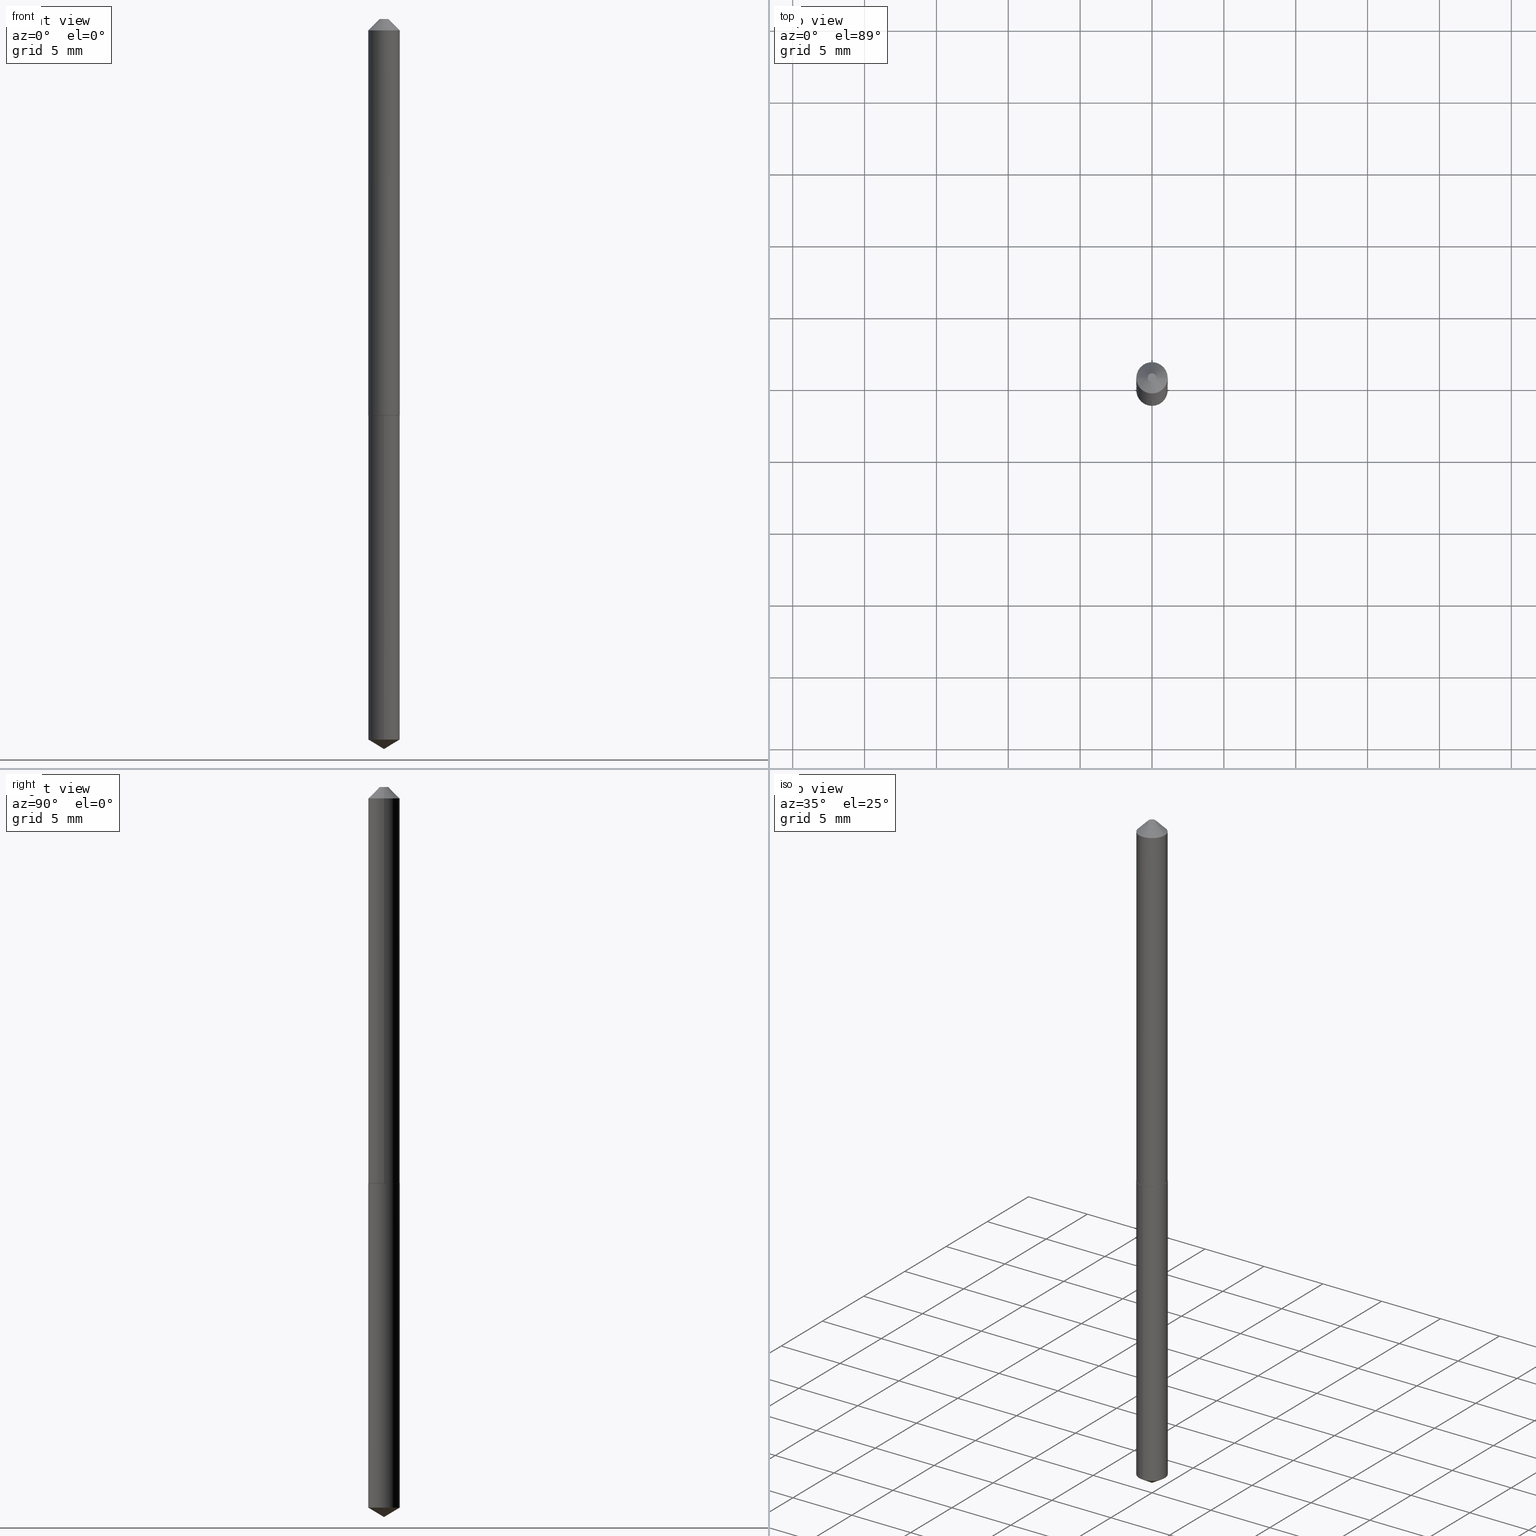
[diagram: canonical four-view strip — front | top / right | iso, engineering-drawing reading convention]
A machine part, canonical four-view strip (front | top / right | iso — engineering-drawing reading convention). The complete STEP part file that produces these views, byte-faithful:
ISO-10303-21;
HEADER;
FILE_DESCRIPTION (( 'STEP AP203' ),
    '1' );
FILE_NAME ('51044.STEP',
    '2024-04-22T18:17:53',
    ( '' ),
    ( '' ),
    'SwSTEP 2.0',
    'SolidWorks 2023',
    '' );
FILE_SCHEMA (( 'CONFIG_CONTROL_DESIGN' ));
ENDSEC;

DATA;
#1 = CARTESIAN_POINT ( 'NONE',  ( 2.655779123517058654E-29, -3.791748733983655635E-15, -1.086000000000000076 ) ) ;
#2 = AXIS2_PLACEMENT_3D ( 'NONE', #201, #27, #147 ) ;
#3 = ORIENTED_EDGE ( 'NONE', *, *, #52, .F. ) ;
#4 = LENGTH_MEASURE_WITH_UNIT ( LENGTH_MEASURE( 0.02539999999999999897 ), #266 );
#5 = ORIENTED_EDGE ( 'NONE', *, *, #10, .F. ) ;
#6 = ADVANCED_FACE ( 'NONE', ( #16 ), #342, .T. ) ;
#7 = CARTESIAN_POINT ( 'NONE',  ( -9.138673509191841507E-28, 1.304778300966361827E-13, 37.37007874015748143 ) ) ;
#8 = COORDINATED_UNIVERSAL_TIME_OFFSET ( 5, 0, .BEHIND. ) ;
#9 = PERSON_AND_ORGANIZATION ( #70, #100 ) ;
#10 = EDGE_CURVE ( 'NONE', #220, #66, #174, .T. ) ;
#11 = FACE_OUTER_BOUND ( 'NONE', #280, .T. ) ;
#12 = SHAPE_DEFINITION_REPRESENTATION ( #296, #88 ) ;
#13 = CIRCLE ( 'NONE', #227, 0.04300000000000013534 ) ;
#14 = ORIENTED_EDGE ( 'NONE', *, *, #379, .F. ) ;
#15 = DIRECTION ( 'NONE',  ( -1.000000000000000000, 6.982962677686265922E-15, 0.000000000000000000 ) ) ;
#16 = FACE_OUTER_BOUND ( 'NONE', #121, .T. ) ;
#17 = VERTEX_POINT ( 'NONE', #279 ) ;
#18 = CIRCLE ( 'NONE', #99, 0.04300000000000013534 ) ;
#19 = APPROVAL_PERSON_ORGANIZATION ( #313, #276, #369 ) ;
#20 = CARTESIAN_POINT ( 'NONE',  ( -0.04300000000000001044, -1.644022516199696687E-15, -0.03125000000000020817 ) ) ;
#21 = DIRECTION ( 'NONE',  ( -2.445452508324315047E-29, 3.491504678307458677E-15, 1.000000000000000000 ) ) ;
#22 = DIRECTION ( 'NONE',  ( -2.445468806185136877E-29, 3.491481338843145188E-15, 1.000000000000000000 ) ) ;
#23 = LINE ( 'NONE', #322, #184 ) ;
#24 = AXIS2_PLACEMENT_3D ( 'NONE', #1, #205, #386 ) ;
#25 = DIRECTION ( 'NONE',  ( -2.445468806185136597E-29, 3.491481338843145583E-15, 1.000000000000000000 ) ) ;
#26 = CC_DESIGN_PERSON_AND_ORGANIZATION_ASSIGNMENT ( #9, #315, ( #357 ) ) ;
#27 = DIRECTION ( 'NONE',  ( -2.445452508324315047E-29, 3.491504678307458677E-15, 1.000000000000000000 ) ) ;
#28 = ORIENTED_EDGE ( 'NONE', *, *, #87, .F. ) ;
#29 = AXIS2_PLACEMENT_3D ( 'NONE', #161, #286, #15 ) ;
#30 = CIRCLE ( 'NONE', #134, 0.04300000000000001044 ) ;
#31 = LOCAL_TIME ( 14, 17, 53.00000000000000000, #212 ) ;
#32 = CARTESIAN_POINT ( 'NONE',  ( 2.654556389113965852E-29, -3.790002993314234131E-15, -1.085499999999999909 ) ) ;
#33 = ADVANCED_FACE ( 'NONE', ( #108 ), #165, .T. ) ;
#34 = DIRECTION ( 'NONE',  ( 0.7071067811865452413, -7.319954787623248157E-15, -0.7071067811865497932 ) ) ;
#35 = AXIS2_PLACEMENT_3D ( 'NONE', #112, #325, #358 ) ;
#36 = LOCAL_TIME ( 14, 17, 53.00000000000000000, #347 ) ;
#37 = ADVANCED_FACE ( 'NONE', ( #11 ), #233, .T. ) ;
#38 = ORIENTED_EDGE ( 'NONE', *, *, #179, .T. ) ;
#39 = PERSON_AND_ORGANIZATION_ROLE ( 'creator' ) ;
#40 = ORIENTED_EDGE ( 'NONE', *, *, #343, .T. ) ;
#41 = PERSON_AND_ORGANIZATION ( #70, #100 ) ;
#42 = VERTEX_POINT ( 'NONE', #164 ) ;
#43 = VERTEX_POINT ( 'NONE', #339 ) ;
#44 = APPROVAL_DATE_TIME ( #137, #276 ) ;
#45 = DIRECTION ( 'NONE',  ( 2.445468806185136597E-29, -3.491481338843145583E-15, -1.000000000000000000 ) ) ;
#46 = DIRECTION ( 'NONE',  ( -2.445468806185136877E-29, 3.491481338843145188E-15, 1.000000000000000000 ) ) ;
#47 = LOCAL_TIME ( 14, 17, 53.00000000000000000, #223 ) ;
#48 = DIRECTION ( 'NONE',  ( 1.000000000000000000, -6.982962677686265922E-15, 4.876129382568620809E-29 ) ) ;
#49 = CARTESIAN_POINT ( 'NONE',  ( 2.654556389113965852E-29, -3.790002993314234131E-15, -1.085499999999999909 ) ) ;
#50 = DIRECTION ( 'NONE',  ( 0.7071067811864569785, -2.468850131081308455E-15, 0.7071067811866380559 ) ) ;
#51 = DIRECTION ( 'NONE',  ( 1.000000000000000000, -6.982962677686259611E-15, 0.000000000000000000 ) ) ;
#52 = EDGE_CURVE ( 'NONE', #89, #42, #319, .T. ) ;
#53 = CONICAL_SURFACE ( 'NONE', #373, 0.04300000000000013534, 0.7853981633973202703 ) ;
#54 = DIRECTION ( 'NONE',  ( 6.982962677686265922E-15, 1.000000000000000000, -3.491504678307459072E-15 ) ) ;
#55 = ORIENTED_EDGE ( 'NONE', *, *, #52, .T. ) ;
#56 = ORIENTED_EDGE ( 'NONE', *, *, #240, .F. ) ;
#57 = AXIS2_PLACEMENT_3D ( 'NONE', #338, #245, #237 ) ;
#58 = LOCAL_TIME ( 14, 17, 53.00000000000000000, #128 ) ;
#59 = ADVANCED_FACE ( 'NONE', ( #77 ), #53, .T. ) ;
#60 = DIRECTION ( 'NONE',  ( -0.7071067811865452413, 2.468850131082233000E-15, -0.7071067811865497932 ) ) ;
#61 = LINE ( 'NONE', #306, #364 ) ;
#62 = EDGE_LOOP ( 'NONE', ( #210, #365 ) ) ;
#63 = APPROVAL_ROLE ( '' ) ;
#64 = PERSON_AND_ORGANIZATION ( #70, #100 ) ;
#65 = VECTOR ( 'NONE', #46, 39.37007874015748143 ) ;
#66 = VERTEX_POINT ( 'NONE', #390 ) ;
#67 = DATE_TIME_ROLE ( 'creation_date' ) ;
#68 = ORIENTED_EDGE ( 'NONE', *, *, #163, .F. ) ;
#69 = MECHANICAL_CONTEXT ( 'NONE', #341, 'mechanical' ) ;
#70 = PERSON ( 'UNSPECIFIED', 'UNSPECIFIED', 'UNSPECIFIED', ('UNSPECIFIED'), ('UNSPECIFIED'), ('UNSPECIFIED') ) ;
#71 = ORIENTED_EDGE ( 'NONE', *, *, #10, .T. ) ;
#72 = APPROVAL_ROLE ( '' ) ;
#73 = EDGE_CURVE ( 'NONE', #344, #254, #197, .T. ) ;
#74 = AXIS2_PLACEMENT_3D ( 'NONE', #225, #196, #228 ) ;
#75 = ORIENTED_EDGE ( 'NONE', *, *, #158, .T. ) ;
#76 = ORIENTED_EDGE ( 'NONE', *, *, #301, .T. ) ;
#77 = FACE_OUTER_BOUND ( 'NONE', #131, .T. ) ;
#78 = ADVANCED_FACE ( 'NONE', ( #355 ), #114, .F. ) ;
#79 = CYLINDRICAL_SURFACE ( 'NONE', #91, 0.04300000000000007983 ) ;
#80 = CARTESIAN_POINT ( 'NONE',  ( -9.138673509191841507E-28, 1.304778300966361827E-13, 37.37007874015748143 ) ) ;
#81 = CONICAL_SURFACE ( 'NONE', #302, 65.52281426576888634, 1.029744258676657642 ) ;
#82 = FACE_OUTER_BOUND ( 'NONE', #187, .T. ) ;
#83 = DIRECTION ( 'NONE',  ( -5.985567269335953901E-15, -0.8571673007021122226, 0.5150380749100544886 ) ) ;
#84 = DIRECTION ( 'NONE',  ( 1.000000000000000000, -6.982962677686265133E-15, 0.000000000000000000 ) ) ;
#85 = AXIS2_PLACEMENT_3D ( 'NONE', #106, #194, #250 ) ;
#86 = CARTESIAN_POINT ( 'NONE',  ( -0.04300000000000001044, 1.911586033016605079E-16, -0.03125000000000020817 ) ) ;
#87 = EDGE_CURVE ( 'NONE', #335, #344, #23, .T. ) ;
#88 = ADVANCED_BREP_SHAPE_REPRESENTATION ( '51044', ( #317, #310, #85 ), #190 ) ;
#89 = VERTEX_POINT ( 'NONE', #168 ) ;
#90 = APPLICATION_CONTEXT ( 'configuration controlled 3d designs of mechanical parts and assemblies' ) ;
#91 = AXIS2_PLACEMENT_3D ( 'NONE', #198, #169, #144 ) ;
#92 = APPROVAL_STATUS ( 'not_yet_approved' ) ;
#93 = EDGE_CURVE ( 'NONE', #254, #344, #309, .T. ) ;
#94 = PERSON_AND_ORGANIZATION ( #70, #100 ) ;
#95 = CC_DESIGN_PERSON_AND_ORGANIZATION_ASSIGNMENT ( #64, #374, ( #125 ) ) ;
#96 = DIRECTION ( 'NONE',  ( 1.000000000000000000, -6.982962677686265922E-15, 4.876129382568620809E-29 ) ) ;
#97 = DATE_AND_TIME ( #243, #282 ) ;
#98 = APPLICATION_PROTOCOL_DEFINITION ( 'international standard', 'config_control_design', 1994, #90 ) ;
#99 = AXIS2_PLACEMENT_3D ( 'NONE', #115, #232, #259 ) ;
#100 = ORGANIZATION ( 'UNSPECIFIED', 'UNSPECIFIED', '' ) ;
#101 = ORIENTED_EDGE ( 'NONE', *, *, #379, .T. ) ;
#102 = DATE_TIME_ROLE ( 'classification_date' ) ;
#103 = ORIENTED_EDGE ( 'NONE', *, *, #93, .F. ) ;
#104 = APPROVAL_STATUS ( 'not_yet_approved' ) ;
#105 = EDGE_LOOP ( 'NONE', ( #5, #162, #349, #180 ) ) ;
#106 = CARTESIAN_POINT ( 'NONE',  ( 0.000000000000000000, 0.000000000000000000, 0.000000000000000000 ) ) ;
#107 = VECTOR ( 'NONE', #50, 39.37007874015748143 ) ;
#108 = FACE_OUTER_BOUND ( 'NONE', #105, .T. ) ;
#109 = DIRECTION ( 'NONE',  ( -2.445468806185136597E-29, 3.491481338843145583E-15, 1.000000000000000000 ) ) ;
#110 = DIRECTION ( 'NONE',  ( -2.445468806185136597E-29, 3.491481338843145583E-15, 1.000000000000000000 ) ) ;
#111 = CARTESIAN_POINT ( 'NONE',  ( -0.04300000000000013534, -3.484469616937389991E-15, -1.085499999999999909 ) ) ;
#112 = CARTESIAN_POINT ( 'NONE',  ( 2.246126659431986639E-48, -3.206873584422718336E-34, -9.184850993605114272E-20 ) ) ;
#113 = CC_DESIGN_APPROVAL ( #276, ( #348 ) ) ;
#114 = PLANE ( 'NONE',  #249 ) ;
#115 = CARTESIAN_POINT ( 'NONE',  ( 2.654556389113965852E-29, -3.790002993314234131E-15, -1.085499999999999909 ) ) ;
#116 = UNCERTAINTY_MEASURE_WITH_UNIT (LENGTH_MEASURE( 1.000000000000000082E-05 ), #305, 'distance_accuracy_value', 'NONE');
#117 = CIRCLE ( 'NONE', #150, 0.04250000000000009326 ) ;
#118 = ADVANCED_FACE ( 'NONE', ( #261 ), #256, .T. ) ;
#119 = ORIENTED_EDGE ( 'NONE', *, *, #179, .F. ) ;
#120 = LINE ( 'NONE', #86, #346 ) ;
#121 = EDGE_LOOP ( 'NONE', ( #303, #38, #56, #3 ) ) ;
#122 = FACE_OUTER_BOUND ( 'NONE', #377, .T. ) ;
#123 = AXIS2_PLACEMENT_3D ( 'NONE', #329, #110, #48 ) ;
#124 = ADVANCED_FACE ( 'NONE', ( #331 ), #351, .F. ) ;
#125 = PRODUCT_DEFINITION_FORMATION_WITH_SPECIFIED_SOURCE ( 'ANY', '', #357, .NOT_KNOWN. ) ;
#126 = CARTESIAN_POINT ( 'NONE',  ( 0.01175000000000000176, -2.423605286084202355E-16, -1.836970198709687553E-19 ) ) ;
#127 = CALENDAR_DATE ( 2024, 22, 4 ) ;
#128 = COORDINATED_UNIVERSAL_TIME_OFFSET ( 5, 0, .BEHIND. ) ;
#129 = ORIENTED_EDGE ( 'NONE', *, *, #285, .F. ) ;
#130 = DATE_AND_TIME ( #127, #31 ) ;
#131 = EDGE_LOOP ( 'NONE', ( #299, #253, #314, #135 ) ) ;
#132 = CIRCLE ( 'NONE', #74, 0.04300000000000000350 ) ;
#133 = DATE_AND_TIME ( #191, #58 ) ;
#134 = AXIS2_PLACEMENT_3D ( 'NONE', #268, #265, #304 ) ;
#135 = ORIENTED_EDGE ( 'NONE', *, *, #343, .F. ) ;
#136 = EDGE_CURVE ( 'NONE', #89, #141, #18, .T. ) ;
#137 = DATE_AND_TIME ( #188, #47 ) ;
#138 = DIRECTION ( 'NONE',  ( -1.000000000000000000, 6.982962677686265922E-15, 0.000000000000000000 ) ) ;
#139 = CARTESIAN_POINT ( 'NONE',  ( 4.492253318863973277E-48, -6.413747168845436671E-34, -1.836970198721022854E-19 ) ) ;
#140 = CC_DESIGN_DATE_AND_TIME_ASSIGNMENT ( #277, #67, ( #348 ) ) ;
#141 = VERTEX_POINT ( 'NONE', #178 ) ;
#142 = CARTESIAN_POINT ( 'NONE',  ( 3.055333763768914225E-16, 0.04299999999999620792, -1.086000000000000076 ) ) ;
#143 = DIRECTION ( 'NONE',  ( 1.000000000000000000, -6.982962677686265133E-15, 0.000000000000000000 ) ) ;
#144 = DIRECTION ( 'NONE',  ( 1.000000000000000000, -6.982962677686265922E-15, 4.876176775795935793E-29 ) ) ;
#145 = DIRECTION ( 'NONE',  ( -2.445468806185136597E-29, 3.491481338843145583E-15, 1.000000000000000000 ) ) ;
#146 = DIRECTION ( 'NONE',  ( -6.982962677686265922E-15, -1.000000000000000000, 6.353134868986658336E-15 ) ) ;
#147 = DIRECTION ( 'NONE',  ( -6.982962677686265922E-15, -1.000000000000000000, 6.353134868986658336E-15 ) ) ;
#148 = DIMENSIONAL_EXPONENTS ( 1.000000000000000000, 0.000000000000000000, 0.000000000000000000, 0.000000000000000000, 0.000000000000000000, 0.000000000000000000, 0.000000000000000000 ) ;
#149 = ADVANCED_FACE ( 'NONE', ( #353 ), #292, .F. ) ;
#150 = AXIS2_PLACEMENT_3D ( 'NONE', #226, #145, #51 ) ;
#151 = DIRECTION ( 'NONE',  ( -0.7071067811864569785, 7.493145998870027572E-15, 0.7071067811866380559 ) ) ;
#152 = CC_DESIGN_SECURITY_CLASSIFICATION ( #260, ( #125 ) ) ;
#153 = CARTESIAN_POINT ( 'NONE',  ( -3.002673951404828859E-16, -0.04300000000000379213, -1.085999999999999854 ) ) ;
#154 = SECURITY_CLASSIFICATION_LEVEL ( 'unclassified' ) ;
#155 = LINE ( 'NONE', #273, #388 ) ;
#156 = APPROVAL_PERSON_ORGANIZATION ( #41, #244, #72 ) ;
#157 = ORIENTED_EDGE ( 'NONE', *, *, #73, .F. ) ;
#158 = EDGE_CURVE ( 'NONE', #43, #17, #281, .T. ) ;
#159 = ORIENTED_EDGE ( 'NONE', *, *, #73, .T. ) ;
#160 = AXIS2_PLACEMENT_3D ( 'NONE', #209, #363, #242 ) ;
#161 = CARTESIAN_POINT ( 'NONE',  ( 7.642090019328602662E-31, -1.091087918388490267E-16, -0.03125000000000020817 ) ) ;
#162 = ORIENTED_EDGE ( 'NONE', *, *, #307, .T. ) ;
#163 = EDGE_CURVE ( 'NONE', #224, #333, #132, .T. ) ;
#164 = CARTESIAN_POINT ( 'NONE',  ( 0.04300000000000001044, -4.093761869793585120E-16, -0.03125000000000020817 ) ) ;
#165 = CONICAL_SURFACE ( 'NONE', #29, 0.04300000000000001044, 0.7853981633974450594 ) ;
#166 = AXIS2_PLACEMENT_3D ( 'NONE', #361, #272, #367 ) ;
#167 = LINE ( 'NONE', #289, #211 ) ;
#168 = CARTESIAN_POINT ( 'NONE',  ( 0.04300000000000013534, -4.090270388454744578E-15, -1.085499999999999909 ) ) ;
#169 = DIRECTION ( 'NONE',  ( -2.445468806185136597E-29, 3.491481338843145583E-15, 1.000000000000000000 ) ) ;
#170 = CARTESIAN_POINT ( 'NONE',  ( -0.04300000000000007983, 3.055333763768436471E-16, -2.115142088809613253E-30 ) ) ;
#171 = CC_DESIGN_PERSON_AND_ORGANIZATION_ASSIGNMENT ( #337, #39, ( #125 ) ) ;
#172 = DIRECTION ( 'NONE',  ( -2.445468806185136597E-29, 3.491481338843145583E-15, 1.000000000000000000 ) ) ;
#173 = LINE ( 'NONE', #352, #176 ) ;
#174 = CIRCLE ( 'NONE', #371, 0.01175000000000000176 ) ;
#175 = DIRECTION ( 'NONE',  ( 1.000000000000000000, -6.982962677686265922E-15, 4.876176775795935793E-29 ) ) ;
#176 = VECTOR ( 'NONE', #324, 39.37007874015748143 ) ;
#177 = APPROVAL_PERSON_ORGANIZATION ( #366, #350, #63 ) ;
#178 = CARTESIAN_POINT ( 'NONE',  ( -0.04300000000000013534, -3.484469616937389991E-15, -1.085499999999999909 ) ) ;
#179 = EDGE_CURVE ( 'NONE', #141, #332, #230, .T. ) ;
#180 = ORIENTED_EDGE ( 'NONE', *, *, #262, .F. ) ;
#181 = CC_DESIGN_DATE_AND_TIME_ASSIGNMENT ( #97, #102, ( #260 ) ) ;
#182 = ORIENTED_EDGE ( 'NONE', *, *, #163, .T. ) ;
#183 = VECTOR ( 'NONE', #151, 39.37007874015748143 ) ;
#184 = VECTOR ( 'NONE', #83, 39.37007874015748143 ) ;
#185 = ORIENTED_EDGE ( 'NONE', *, *, #301, .F. ) ;
#186 = ADVANCED_FACE ( 'NONE', ( #203 ), #81, .T. ) ;
#187 = EDGE_LOOP ( 'NONE', ( #189, #75, #40, #129 ) ) ;
#188 = CALENDAR_DATE ( 2024, 22, 4 ) ;
#189 = ORIENTED_EDGE ( 'NONE', *, *, #269, .F. ) ;
#190 =( GEOMETRIC_REPRESENTATION_CONTEXT ( 3 ) GLOBAL_UNCERTAINTY_ASSIGNED_CONTEXT ( ( #116 ) ) GLOBAL_UNIT_ASSIGNED_CONTEXT ( ( #305, #217, #378 ) ) REPRESENTATION_CONTEXT ( 'NONE', 'WORKASPACE' ) );
#191 = CALENDAR_DATE ( 2024, 22, 4 ) ;
#192 = ADVANCED_FACE ( 'NONE', ( #82 ), #294, .T. ) ;
#193 = ORIENTED_EDGE ( 'NONE', *, *, #328, .T. ) ;
#194 = DIRECTION ( 'NONE',  ( 0.000000000000000000, 0.000000000000000000, 1.000000000000000000 ) ) ;
#195 = DIRECTION ( 'NONE',  ( 1.000000000000000000, -6.982962677686265922E-15, 4.876176775795935793E-29 ) ) ;
#196 = DIRECTION ( 'NONE',  ( -2.445452508324315047E-29, 3.491504678307458677E-15, 1.000000000000000000 ) ) ;
#197 = CIRCLE ( 'NONE', #2, 0.04300000000000000350 ) ;
#198 = CARTESIAN_POINT ( 'NONE',  ( 0.000000000000000000, 0.000000000000000000, 0.000000000000000000 ) ) ;
#199 = CARTESIAN_POINT ( 'NONE',  ( 2.654556389113965852E-29, -3.790002993314234131E-15, -1.085499999999999909 ) ) ;
#200 = EDGE_CURVE ( 'NONE', #66, #220, #323, .T. ) ;
#201 = CARTESIAN_POINT ( 'NONE',  ( 4.827739543483450780E-29, -6.892773980475820640E-15, -1.974162993381815001 ) ) ;
#202 = LINE ( 'NONE', #327, #107 ) ;
#203 = FACE_OUTER_BOUND ( 'NONE', #208, .T. ) ;
#204 = VECTOR ( 'NONE', #22, 39.37007874015748143 ) ;
#205 = DIRECTION ( 'NONE',  ( -2.445452508324315047E-29, 3.491504678307458677E-15, 1.000000000000000000 ) ) ;
#206 = CC_DESIGN_PERSON_AND_ORGANIZATION_ASSIGNMENT ( #219, #320, ( #348 ) ) ;
#207 = CC_DESIGN_APPROVAL ( #350, ( #260 ) ) ;
#208 = EDGE_LOOP ( 'NONE', ( #368, #284, #103 ) ) ;
#209 = CARTESIAN_POINT ( 'NONE',  ( 2.655779123517058654E-29, -3.791748733983655635E-15, -1.086000000000000076 ) ) ;
#210 = ORIENTED_EDGE ( 'NONE', *, *, #213, .F. ) ;
#211 = VECTOR ( 'NONE', #389, 39.37007874015748143 ) ;
#212 = COORDINATED_UNIVERSAL_TIME_OFFSET ( 5, 0, .BEHIND. ) ;
#213 = EDGE_CURVE ( 'NONE', #17, #43, #117, .T. ) ;
#214 = CYLINDRICAL_SURFACE ( 'NONE', #166, 0.04300000000000000350 ) ;
#215 = DIRECTION ( 'NONE',  ( 6.090539988449790268E-15, 0.8571673007021156643, 0.5150380749100483824 ) ) ;
#216 = ORIENTED_EDGE ( 'NONE', *, *, #285, .T. ) ;
#217 =( NAMED_UNIT ( * ) PLANE_ANGLE_UNIT ( ) SI_UNIT ( $, .RADIAN. ) );
#218 = ORIENTED_EDGE ( 'NONE', *, *, #262, .T. ) ;
#219 = PERSON_AND_ORGANIZATION ( #70, #100 ) ;
#220 = VERTEX_POINT ( 'NONE', #126 ) ;
#221 = CARTESIAN_POINT ( 'NONE',  ( 0.000000000000000000, 0.000000000000000000, 0.000000000000000000 ) ) ;
#222 = CARTESIAN_POINT ( 'NONE',  ( 7.642090019328602662E-31, -1.091087918388490267E-16, -0.03125000000000020817 ) ) ;
#223 = COORDINATED_UNIVERSAL_TIME_OFFSET ( 5, 0, .BEHIND. ) ;
#224 = VERTEX_POINT ( 'NONE', #153 ) ;
#225 = CARTESIAN_POINT ( 'NONE',  ( 2.655779123517058654E-29, -3.791748733983655635E-15, -1.086000000000000076 ) ) ;
#226 = CARTESIAN_POINT ( 'NONE',  ( 2.655779123517058654E-29, -3.791748733983656424E-15, -1.086000000000000076 ) ) ;
#227 = AXIS2_PLACEMENT_3D ( 'NONE', #32, #271, #239 ) ;
#228 = DIRECTION ( 'NONE',  ( -6.982962677686265922E-15, -1.000000000000000000, 3.176567434493329168E-15 ) ) ;
#229 = CARTESIAN_POINT ( 'NONE',  ( 4.890905016648630654E-29, -6.983009356614917355E-15, -2.000000000000000000 ) ) ;
#230 = LINE ( 'NONE', #170, #65 ) ;
#231 = ADVANCED_FACE ( 'NONE', ( #236 ), #214, .T. ) ;
#232 = DIRECTION ( 'NONE',  ( -2.445468806185136597E-29, 3.491481338843145583E-15, 1.000000000000000000 ) ) ;
#233 = CONICAL_SURFACE ( 'NONE', #300, 0.04300000000000001044, 0.7853981633974450594 ) ;
#234 = CARTESIAN_POINT ( 'NONE',  ( 3.055333763768911760E-16, 0.04299999999999309236, -1.974162993381815445 ) ) ;
#235 = AXIS2_PLACEMENT_3D ( 'NONE', #264, #258, #146 ) ;
#236 = FACE_OUTER_BOUND ( 'NONE', #372, .T. ) ;
#237 = DIRECTION ( 'NONE',  ( 1.000000000000000000, -6.982962677686265922E-15, 0.000000000000000000 ) ) ;
#238 = EDGE_LOOP ( 'NONE', ( #119, #216, #55, #311 ) ) ;
#239 = DIRECTION ( 'NONE',  ( 1.000000000000000000, -6.982962677686265133E-15, 0.000000000000000000 ) ) ;
#240 = EDGE_CURVE ( 'NONE', #42, #332, #30, .T. ) ;
#241 = DIRECTION ( 'NONE',  ( -2.445452508324315047E-29, 3.491504678307458677E-15, 1.000000000000000000 ) ) ;
#242 = DIRECTION ( 'NONE',  ( -6.982962677686265922E-15, -1.000000000000000000, 3.176567434493329168E-15 ) ) ;
#243 = CALENDAR_DATE ( 2024, 22, 4 ) ;
#244 = APPROVAL ( #376, 'UNSPECIFIED' ) ;
#245 = DIRECTION ( 'NONE',  ( -2.445468806185136597E-29, 3.491481338843145583E-15, 1.000000000000000000 ) ) ;
#246 = APPROVAL_DATE_TIME ( #133, #244 ) ;
#247 = ADVANCED_FACE ( 'NONE', ( #122 ), #354, .T. ) ;
#248 = EDGE_LOOP ( 'NONE', ( #182, #76 ) ) ;
#249 = AXIS2_PLACEMENT_3D ( 'NONE', #293, #385, #175 ) ;
#250 = DIRECTION ( 'NONE',  ( 1.000000000000000000, 0.000000000000000000, 0.000000000000000000 ) ) ;
#251 = ORIENTED_EDGE ( 'NONE', *, *, #328, .F. ) ;
#252 = CALENDAR_DATE ( 2024, 22, 4 ) ;
#253 = ORIENTED_EDGE ( 'NONE', *, *, #269, .T. ) ;
#254 = VERTEX_POINT ( 'NONE', #234 ) ;
#255 = AXIS2_PLACEMENT_3D ( 'NONE', #221, #345, #195 ) ;
#256 = CYLINDRICAL_SURFACE ( 'NONE', #24, 0.04300000000000000350 ) ;
#257 = CARTESIAN_POINT ( 'NONE',  ( -3.002673951404610936E-16, -0.04300000000000687994, -1.974162993381814779 ) ) ;
#258 = DIRECTION ( 'NONE',  ( -2.445452508324315047E-29, 3.491504678307458677E-15, 1.000000000000000000 ) ) ;
#259 = DIRECTION ( 'NONE',  ( 1.000000000000000000, -6.982962677686265133E-15, 0.000000000000000000 ) ) ;
#260 = SECURITY_CLASSIFICATION ( '', '', #154 ) ;
#261 = FACE_OUTER_BOUND ( 'NONE', #270, .T. ) ;
#262 = EDGE_CURVE ( 'NONE', #66, #332, #120, .T. ) ;
#263 = FACE_OUTER_BOUND ( 'NONE', #238, .T. ) ;
#264 = CARTESIAN_POINT ( 'NONE',  ( 4.827739543483450780E-29, -6.892773980475820640E-15, -1.974162993381815001 ) ) ;
#265 = DIRECTION ( 'NONE',  ( -2.445468806185136597E-29, 3.491481338843145583E-15, 1.000000000000000000 ) ) ;
#266 =( LENGTH_UNIT ( ) NAMED_UNIT ( * ) SI_UNIT ( $, .METRE. ) );
#267 = AXIS2_PLACEMENT_3D ( 'NONE', #295, #384, #54 ) ;
#268 = CARTESIAN_POINT ( 'NONE',  ( 7.642090019328602662E-31, -1.091087918388490267E-16, -0.03125000000000020817 ) ) ;
#269 = EDGE_CURVE ( 'NONE', #43, #141, #298, .T. ) ;
#270 = EDGE_LOOP ( 'NONE', ( #251, #318, #101, #185 ) ) ;
#271 = DIRECTION ( 'NONE',  ( -2.445468806185136597E-29, 3.491481338843145583E-15, 1.000000000000000000 ) ) ;
#272 = DIRECTION ( 'NONE',  ( -2.445452508324315047E-29, 3.491504678307458677E-15, 1.000000000000000000 ) ) ;
#273 = CARTESIAN_POINT ( 'NONE',  ( 4.890940726009373338E-29, -6.982958663298429807E-15, -2.000000000000000000 ) ) ;
#274 = AXIS2_PLACEMENT_3D ( 'NONE', #49, #172, #143 ) ;
#275 = PERSON_AND_ORGANIZATION_ROLE ( 'classification_officer' ) ;
#276 = APPROVAL ( #104, 'UNSPECIFIED' ) ;
#277 = DATE_AND_TIME ( #252, #36 ) ;
#278 = APPLICATION_PROTOCOL_DEFINITION ( 'international standard', 'config_control_design', 1994, #341 ) ;
#279 = CARTESIAN_POINT ( 'NONE',  ( 0.04250000000000009326, -4.088524647785323075E-15, -1.086000000000000076 ) ) ;
#280 = EDGE_LOOP ( 'NONE', ( #380, #375, #218, #336 ) ) ;
#281 = CIRCLE ( 'NONE', #340, 0.04250000000000009326 ) ;
#282 = LOCAL_TIME ( 14, 17, 53.00000000000000000, #8 ) ;
#283 = CC_DESIGN_PERSON_AND_ORGANIZATION_ASSIGNMENT ( #94, #275, ( #260 ) ) ;
#284 = ORIENTED_EDGE ( 'NONE', *, *, #87, .T. ) ;
#285 = EDGE_CURVE ( 'NONE', #141, #89, #13, .T. ) ;
#286 = DIRECTION ( 'NONE',  ( 2.445468806185136597E-29, -3.491481338843145583E-15, -1.000000000000000000 ) ) ;
#287 = ORIENTED_EDGE ( 'NONE', *, *, #316, .T. ) ;
#288 = EDGE_CURVE ( 'NONE', #332, #42, #382, .T. ) ;
#289 = CARTESIAN_POINT ( 'NONE',  ( 3.055333763768695809E-16, 0.04299999999999620792, -1.086000000000000076 ) ) ;
#290 = DIRECTION ( 'NONE',  ( 1.000000000000000000, -6.982962677686259611E-15, 0.000000000000000000 ) ) ;
#291 = PRODUCT_RELATED_PRODUCT_CATEGORY ( 'detail', '', ( #357 ) ) ;
#292 = PLANE ( 'NONE',  #35 ) ;
#293 = CARTESIAN_POINT ( 'NONE',  ( 2.655779123517058654E-29, -3.791748733983656424E-15, -1.086000000000000076 ) ) ;
#294 = CONICAL_SURFACE ( 'NONE', #274, 0.04300000000000013534, 0.7853981633973202703 ) ;
#295 = CARTESIAN_POINT ( 'NONE',  ( 2.655779123517058654E-29, -3.791748733983655635E-15, -1.086000000000000076 ) ) ;
#296 = PRODUCT_DEFINITION_SHAPE ( 'NONE', 'NONE',  #348 ) ;
#297 = CARTESIAN_POINT ( 'NONE',  ( 2.655779123517058654E-29, -3.791748733983656424E-15, -1.086000000000000076 ) ) ;
#298 = LINE ( 'NONE', #111, #183 ) ;
#299 = ORIENTED_EDGE ( 'NONE', *, *, #213, .T. ) ;
#300 = AXIS2_PLACEMENT_3D ( 'NONE', #222, #45, #138 ) ;
#301 = EDGE_CURVE ( 'NONE', #333, #224, #334, .T. ) ;
#302 = AXIS2_PLACEMENT_3D ( 'NONE', #80, #21, #326 ) ;
#303 = ORIENTED_EDGE ( 'NONE', *, *, #136, .T. ) ;
#304 = DIRECTION ( 'NONE',  ( 1.000000000000000000, -6.982962677686265922E-15, 0.000000000000000000 ) ) ;
#305 =( CONVERSION_BASED_UNIT ( 'INCH', #4 ) LENGTH_UNIT ( ) NAMED_UNIT ( #148 ) );
#306 = CARTESIAN_POINT ( 'NONE',  ( 0.04300000000000001044, -4.041102057430249172E-16, -0.03125000000000020817 ) ) ;
#307 = EDGE_CURVE ( 'NONE', #220, #42, #61, .T. ) ;
#308 = DIRECTION ( 'NONE',  ( -6.982962677686265133E-15, -1.000000000000000000, 3.468864327941570154E-15 ) ) ;
#309 = CIRCLE ( 'NONE', #235, 0.04300000000000000350 ) ;
#310 = MANIFOLD_SOLID_BREP ( 'Body-Move/Copy2[2]', #360 ) ;
#311 = ORIENTED_EDGE ( 'NONE', *, *, #288, .F. ) ;
#312 = APPROVAL_DATE_TIME ( #130, #350 ) ;
#313 = PERSON_AND_ORGANIZATION ( #70, #100 ) ;
#314 = ORIENTED_EDGE ( 'NONE', *, *, #136, .F. ) ;
#315 = PERSON_AND_ORGANIZATION_ROLE ( 'design_owner' ) ;
#316 = EDGE_CURVE ( 'NONE', #335, #254, #155, .T. ) ;
#317 = MANIFOLD_SOLID_BREP ( 'Body-Move/Copy2[1]', #381 ) ;
#318 = ORIENTED_EDGE ( 'NONE', *, *, #93, .T. ) ;
#319 = LINE ( 'NONE', #356, #204 ) ;
#320 = PERSON_AND_ORGANIZATION_ROLE ( 'creator' ) ;
#321 = DIRECTION ( 'NONE',  ( -2.445468806185136597E-29, 3.491481338843145583E-15, 1.000000000000000000 ) ) ;
#322 = CARTESIAN_POINT ( 'NONE',  ( 4.890905016648630654E-29, -6.983009356614917355E-15, -2.000000000000000000 ) ) ;
#323 = CIRCLE ( 'NONE', #123, 0.01175000000000000176 ) ;
#324 = DIRECTION ( 'NONE',  ( -2.445452508324315327E-29, 3.491504678307459072E-15, 1.000000000000000000 ) ) ;
#325 = DIRECTION ( 'NONE',  ( 2.438088387897960049E-29, -3.491481338843145188E-15, -1.000000000000000000 ) ) ;
#326 = DIRECTION ( 'NONE',  ( -6.982962677686265133E-15, -1.000000000000000000, 3.468864327941570154E-15 ) ) ;
#327 = CARTESIAN_POINT ( 'NONE',  ( 0.04300000000000013534, -4.090270388454744578E-15, -1.085499999999999909 ) ) ;
#328 = EDGE_CURVE ( 'NONE', #254, #333, #167, .T. ) ;
#329 = CARTESIAN_POINT ( 'NONE',  ( 4.492253318863973277E-48, -6.413747168845436671E-34, -1.836970198721022854E-19 ) ) ;
#330 = AXIS2_PLACEMENT_3D ( 'NONE', #7, #241, #308 ) ;
#331 = FACE_OUTER_BOUND ( 'NONE', #248, .T. ) ;
#332 = VERTEX_POINT ( 'NONE', #20 ) ;
#333 = VERTEX_POINT ( 'NONE', #142 ) ;
#334 = CIRCLE ( 'NONE', #160, 0.04300000000000000350 ) ;
#335 = VERTEX_POINT ( 'NONE', #229 ) ;
#336 = ORIENTED_EDGE ( 'NONE', *, *, #288, .T. ) ;
#337 = PERSON_AND_ORGANIZATION ( #70, #100 ) ;
#338 = CARTESIAN_POINT ( 'NONE',  ( 7.642090019328602662E-31, -1.091087918388490267E-16, -0.03125000000000020817 ) ) ;
#339 = CARTESIAN_POINT ( 'NONE',  ( -0.04250000000000009326, -3.487118844111501587E-15, -1.086000000000000076 ) ) ;
#340 = AXIS2_PLACEMENT_3D ( 'NONE', #297, #109, #290 ) ;
#341 = APPLICATION_CONTEXT ( 'configuration controlled 3d designs of mechanical parts and assemblies' ) ;
#342 = CYLINDRICAL_SURFACE ( 'NONE', #255, 0.04300000000000007983 ) ;
#343 = EDGE_CURVE ( 'NONE', #17, #89, #202, .T. ) ;
#344 = VERTEX_POINT ( 'NONE', #257 ) ;
#345 = DIRECTION ( 'NONE',  ( -2.445468806185136597E-29, 3.491481338843145583E-15, 1.000000000000000000 ) ) ;
#346 = VECTOR ( 'NONE', #60, 39.37007874015748143 ) ;
#347 = COORDINATED_UNIVERSAL_TIME_OFFSET ( 5, 0, .BEHIND. ) ;
#348 = PRODUCT_DEFINITION ( 'UNKNOWN', '', #125, #359 ) ;
#349 = ORIENTED_EDGE ( 'NONE', *, *, #240, .T. ) ;
#350 = APPROVAL ( #92, 'UNSPECIFIED' ) ;
#351 = PLANE ( 'NONE',  #267 ) ;
#352 = CARTESIAN_POINT ( 'NONE',  ( -3.002673951404828859E-16, -0.04300000000000379213, -1.085999999999999854 ) ) ;
#353 = FACE_OUTER_BOUND ( 'NONE', #362, .T. ) ;
#354 = CONICAL_SURFACE ( 'NONE', #330, 65.52281426576888634, 1.029744258676657642 ) ;
#355 = FACE_OUTER_BOUND ( 'NONE', #62, .T. ) ;
#356 = CARTESIAN_POINT ( 'NONE',  ( 0.04300000000000007983, -3.002673951405100030E-16, 2.096756013592256259E-30 ) ) ;
#357 = PRODUCT ( '51044', '51044', '', ( #69 ) ) ;
#358 = DIRECTION ( 'NONE',  ( -1.000000000000000000, 6.982962677686265922E-15, -4.876176775795935793E-29 ) ) ;
#359 = DESIGN_CONTEXT ( 'detailed design', #90, 'design' ) ;
#360 = CLOSED_SHELL ( 'NONE', ( #33, #6, #59, #78, #192, #387, #37, #149 ) ) ;
#361 = CARTESIAN_POINT ( 'NONE',  ( 2.655779123517058654E-29, -3.791748733983655635E-15, -1.086000000000000076 ) ) ;
#362 = EDGE_LOOP ( 'NONE', ( #370, #71 ) ) ;
#363 = DIRECTION ( 'NONE',  ( -2.445452508324315047E-29, 3.491504678307458677E-15, 1.000000000000000000 ) ) ;
#364 = VECTOR ( 'NONE', #34, 39.37007874015748143 ) ;
#365 = ORIENTED_EDGE ( 'NONE', *, *, #158, .F. ) ;
#366 = PERSON_AND_ORGANIZATION ( #70, #100 ) ;
#367 = DIRECTION ( 'NONE',  ( -6.982962677686265922E-15, -1.000000000000000000, 3.176567434493329168E-15 ) ) ;
#368 = ORIENTED_EDGE ( 'NONE', *, *, #316, .F. ) ;
#369 = APPROVAL_ROLE ( '' ) ;
#370 = ORIENTED_EDGE ( 'NONE', *, *, #200, .T. ) ;
#371 = AXIS2_PLACEMENT_3D ( 'NONE', #139, #321, #96 ) ;
#372 = EDGE_LOOP ( 'NONE', ( #159, #193, #68, #14 ) ) ;
#373 = AXIS2_PLACEMENT_3D ( 'NONE', #199, #25, #84 ) ;
#374 = PERSON_AND_ORGANIZATION_ROLE ( 'design_supplier' ) ;
#375 = ORIENTED_EDGE ( 'NONE', *, *, #200, .F. ) ;
#376 = APPROVAL_STATUS ( 'not_yet_approved' ) ;
#377 = EDGE_LOOP ( 'NONE', ( #28, #287, #157 ) ) ;
#378 =( NAMED_UNIT ( * ) SI_UNIT ( $, .STERADIAN. ) SOLID_ANGLE_UNIT ( ) );
#379 = EDGE_CURVE ( 'NONE', #344, #224, #173, .T. ) ;
#380 = ORIENTED_EDGE ( 'NONE', *, *, #307, .F. ) ;
#381 = CLOSED_SHELL ( 'NONE', ( #231, #247, #186, #118, #124 ) ) ;
#382 = CIRCLE ( 'NONE', #57, 0.04300000000000001044 ) ;
#383 = CC_DESIGN_APPROVAL ( #244, ( #125 ) ) ;
#384 = DIRECTION ( 'NONE',  ( 2.445452508324314486E-29, -3.491504678307459072E-15, -1.000000000000000000 ) ) ;
#385 = DIRECTION ( 'NONE',  ( -2.438088387897960049E-29, 3.491481338843145188E-15, 1.000000000000000000 ) ) ;
#386 = DIRECTION ( 'NONE',  ( -6.982962677686265922E-15, -1.000000000000000000, 3.176567434493329168E-15 ) ) ;
#387 = ADVANCED_FACE ( 'NONE', ( #263 ), #79, .T. ) ;
#388 = VECTOR ( 'NONE', #215, 39.37007874015749564 ) ;
#389 = DIRECTION ( 'NONE',  ( -2.445452508324315327E-29, 3.491504678307459072E-15, 1.000000000000000000 ) ) ;
#390 = CARTESIAN_POINT ( 'NONE',  ( -0.01175000000000000176, 1.366042073822370669E-16, -1.836970198728665667E-19 ) ) ;
ENDSEC;
END-ISO-10303-21;
